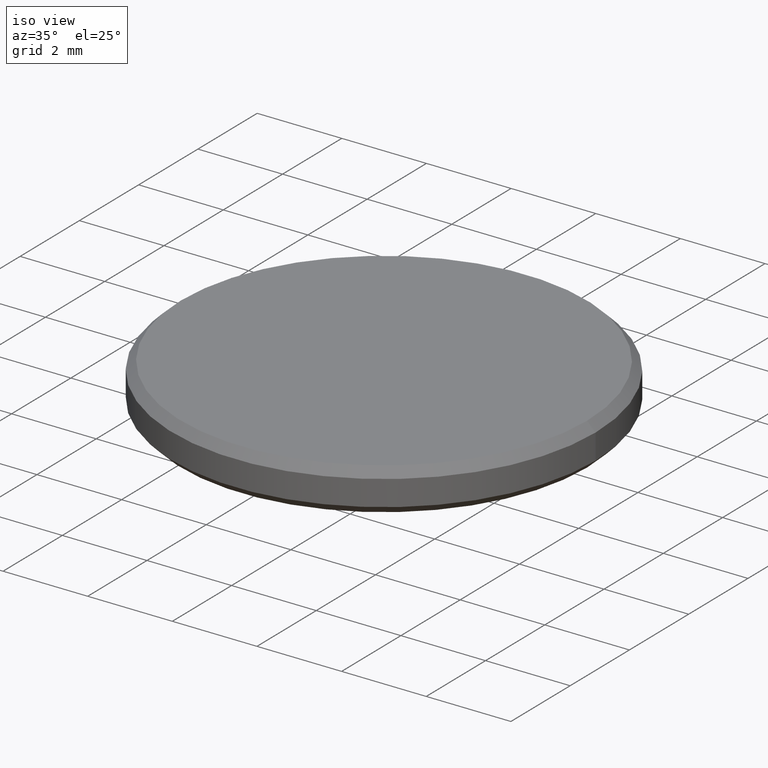
[diagram: clean part render]
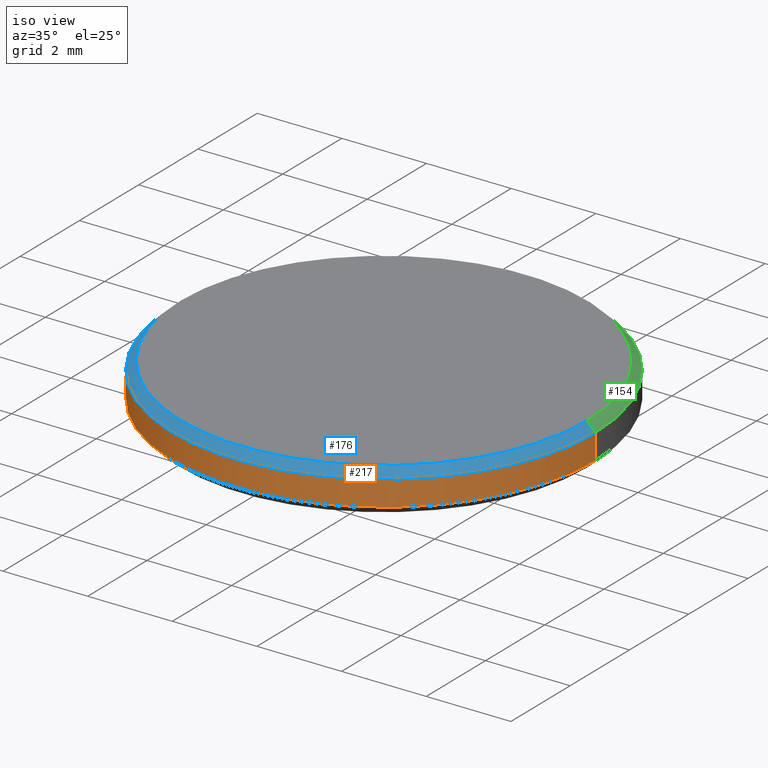
[diagram: same view with three faces highlighted in distinct colors, each labeled with its STEP entity id]
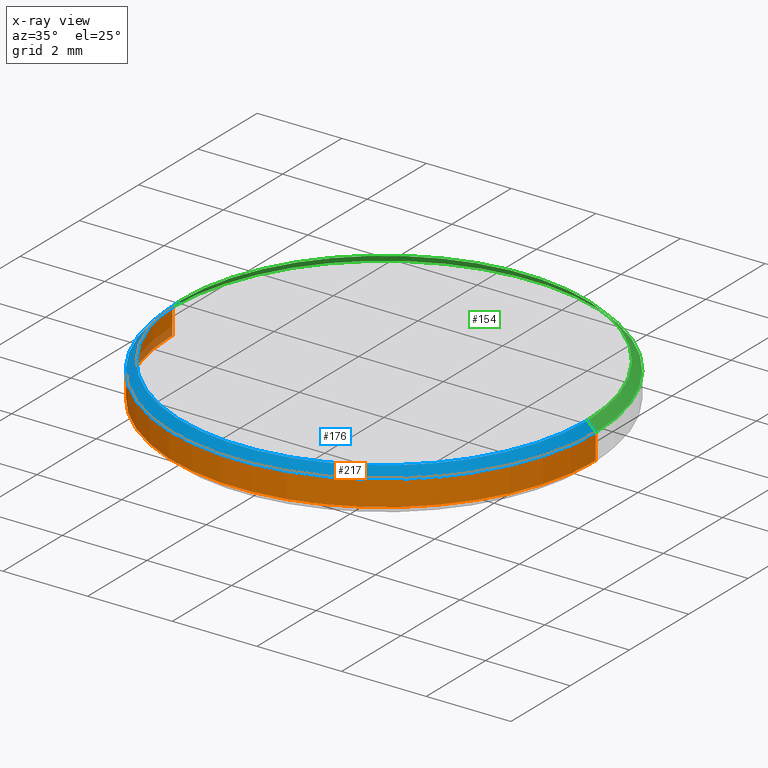
[diagram: x-ray of the same camera — body ghosted, the three highlighted faces saturated]
A machine part, iso view with three faces highlighted in distinct colors.
The next image is the same camera in x-ray (body ghosted, the three faces saturated) — at least one of them is partly hidden behind the body in this view.
Their STEP definitions:

[orange] entity #217 — the highlighted cylindrical surface (partial cylindrical patch) has radius 5 mm, axis along (-0, -0, -1).
#3 = AXIS2_PLACEMENT_3D ( 'NONE', #140, #199, #122 ) ;
#20 = EDGE_CURVE ( 'NONE', #35, #164, #21, .T. ) ;
#21 = CIRCLE ( 'NONE', #65, 5.000000000000000000 ) ;
#22 = ORIENTED_EDGE ( 'NONE', *, *, #223, .T. ) ;
#27 = EDGE_LOOP ( 'NONE', ( #108, #36, #220, #22 ) ) ;
#32 = FACE_OUTER_BOUND ( 'NONE', #27, .T. ) ;
#35 = VERTEX_POINT ( 'NONE', #45 ) ;
#36 = ORIENTED_EDGE ( 'NONE', *, *, #20, .T. ) ;
#38 = VECTOR ( 'NONE', #178, 1000.000000000000000 ) ;
#45 = CARTESIAN_POINT ( 'NONE',  ( 5.000000000000000000, 6.123233995736766282E-16, 0.8000000000000012657 ) ) ;
#62 = DIRECTION ( 'NONE',  ( 0.000000000000000000, 0.000000000000000000, -1.000000000000000000 ) ) ;
#65 = AXIS2_PLACEMENT_3D ( 'NONE', #81, #62, #99 ) ;
#69 = CARTESIAN_POINT ( 'NONE',  ( -5.000000000000000000, 0.000000000000000000, 0.8000000000000012657 ) ) ;
#71 = CARTESIAN_POINT ( 'NONE',  ( -5.000000000000000000, 0.000000000000000000, 0.1999999999999996503 ) ) ;
#73 = EDGE_CURVE ( 'NONE', #164, #201, #169, .T. ) ;
#81 = CARTESIAN_POINT ( 'NONE',  ( 0.000000000000000000, 0.000000000000000000, 0.8000000000000012657 ) ) ;
#91 = CARTESIAN_POINT ( 'NONE',  ( 0.000000000000000000, 0.000000000000000000, 1.000000000000000000 ) ) ;
#99 = DIRECTION ( 'NONE',  ( 1.000000000000000000, 0.000000000000000000, 0.000000000000000000 ) ) ;
#100 = AXIS2_PLACEMENT_3D ( 'NONE', #91, #196, #191 ) ;
#104 = CYLINDRICAL_SURFACE ( 'NONE', #100, 5.000000000000000000 ) ;
#108 = ORIENTED_EDGE ( 'NONE', *, *, #204, .F. ) ;
#122 = DIRECTION ( 'NONE',  ( 1.000000000000000000, 0.000000000000000000, 0.000000000000000000 ) ) ;
#128 = VERTEX_POINT ( 'NONE', #211 ) ;
#129 = CARTESIAN_POINT ( 'NONE',  ( -5.000000000000000000, 0.000000000000000000, 1.000000000000000000 ) ) ;
#140 = CARTESIAN_POINT ( 'NONE',  ( 0.000000000000000000, 0.000000000000000000, 0.1999999999999996503 ) ) ;
#143 = VECTOR ( 'NONE', #186, 1000.000000000000000 ) ;
#158 = LINE ( 'NONE', #162, #38 ) ;
#162 = CARTESIAN_POINT ( 'NONE',  ( 5.000000000000000000, 6.123233995736766282E-16, 1.000000000000000000 ) ) ;
#164 = VERTEX_POINT ( 'NONE', #69 ) ;
#169 = LINE ( 'NONE', #129, #143 ) ;
#178 = DIRECTION ( 'NONE',  ( -0.000000000000000000, -0.000000000000000000, -1.000000000000000000 ) ) ;
#186 = DIRECTION ( 'NONE',  ( -0.000000000000000000, -0.000000000000000000, -1.000000000000000000 ) ) ;
#191 = DIRECTION ( 'NONE',  ( -1.000000000000000000, 0.000000000000000000, 0.000000000000000000 ) ) ;
#196 = DIRECTION ( 'NONE',  ( -0.000000000000000000, -0.000000000000000000, -1.000000000000000000 ) ) ;
#199 = DIRECTION ( 'NONE',  ( -0.000000000000000000, -0.000000000000000000, 1.000000000000000000 ) ) ;
#201 = VERTEX_POINT ( 'NONE', #71 ) ;
#204 = EDGE_CURVE ( 'NONE', #35, #128, #158, .T. ) ;
#211 = CARTESIAN_POINT ( 'NONE',  ( 5.000000000000000000, 6.123233995736766282E-16, 0.1999999999999996503 ) ) ;
#217 = ADVANCED_FACE ( 'NONE', ( #32 ), #104, .T. ) ;
#220 = ORIENTED_EDGE ( 'NONE', *, *, #73, .T. ) ;
#223 = EDGE_CURVE ( 'NONE', #201, #128, #231, .T. ) ;
#231 = CIRCLE ( 'NONE', #3, 5.000000000000000000 ) ;

[blue] entity #176 — the highlighted conical surface has half-angle 45 deg.
#2 = VECTOR ( 'NONE', #190, 1000.000000000000114 ) ;
#10 = VECTOR ( 'NONE', #84, 1000.000000000000114 ) ;
#18 = DIRECTION ( 'NONE',  ( 0.000000000000000000, 0.000000000000000000, -1.000000000000000000 ) ) ;
#20 = EDGE_CURVE ( 'NONE', #35, #164, #21, .T. ) ;
#21 = CIRCLE ( 'NONE', #65, 5.000000000000000000 ) ;
#25 = LINE ( 'NONE', #134, #10 ) ;
#35 = VERTEX_POINT ( 'NONE', #45 ) ;
#41 = CARTESIAN_POINT ( 'NONE',  ( 0.000000000000000000, 0.000000000000000000, 1.000000000000000000 ) ) ;
#45 = CARTESIAN_POINT ( 'NONE',  ( 5.000000000000000000, 6.123233995736766282E-16, 0.8000000000000012657 ) ) ;
#46 = EDGE_CURVE ( 'NONE', #56, #164, #25, .T. ) ;
#50 = DIRECTION ( 'NONE',  ( 0.000000000000000000, 0.000000000000000000, 1.000000000000000000 ) ) ;
#56 = VERTEX_POINT ( 'NONE', #206 ) ;
#62 = DIRECTION ( 'NONE',  ( 0.000000000000000000, 0.000000000000000000, -1.000000000000000000 ) ) ;
#64 = CIRCLE ( 'NONE', #123, 4.800000000000002487 ) ;
#65 = AXIS2_PLACEMENT_3D ( 'NONE', #81, #62, #99 ) ;
#69 = CARTESIAN_POINT ( 'NONE',  ( -5.000000000000000000, 0.000000000000000000, 0.8000000000000012657 ) ) ;
#76 = CARTESIAN_POINT ( 'NONE',  ( 0.000000000000000000, 0.000000000000000000, 1.000000000000000000 ) ) ;
#81 = CARTESIAN_POINT ( 'NONE',  ( 0.000000000000000000, 0.000000000000000000, 0.8000000000000012657 ) ) ;
#84 = DIRECTION ( 'NONE',  ( -0.7071067811865460184, 0.000000000000000000, -0.7071067811865489050 ) ) ;
#87 = LINE ( 'NONE', #120, #2 ) ;
#89 = DIRECTION ( 'NONE',  ( -1.000000000000000000, 0.000000000000000000, 0.000000000000000000 ) ) ;
#93 = ORIENTED_EDGE ( 'NONE', *, *, #194, .F. ) ;
#99 = DIRECTION ( 'NONE',  ( 1.000000000000000000, 0.000000000000000000, 0.000000000000000000 ) ) ;
#107 = ORIENTED_EDGE ( 'NONE', *, *, #172, .F. ) ;
#120 = CARTESIAN_POINT ( 'NONE',  ( 4.800000000000002487, 5.878304635907297169E-16, 1.000000000000000000 ) ) ;
#123 = AXIS2_PLACEMENT_3D ( 'NONE', #76, #50, #160 ) ;
#125 = ORIENTED_EDGE ( 'NONE', *, *, #46, .T. ) ;
#134 = CARTESIAN_POINT ( 'NONE',  ( -4.800000000000002487, 0.000000000000000000, 1.000000000000000000 ) ) ;
#151 = CONICAL_SURFACE ( 'NONE', #192, 4.800000000000002487, 0.7853981633974461696 ) ;
#160 = DIRECTION ( 'NONE',  ( 1.000000000000000000, 0.000000000000000000, 0.000000000000000000 ) ) ;
#164 = VERTEX_POINT ( 'NONE', #69 ) ;
#172 = EDGE_CURVE ( 'NONE', #183, #35, #87, .T. ) ;
#176 = ADVANCED_FACE ( 'NONE', ( #202 ), #151, .T. ) ;
#179 = CARTESIAN_POINT ( 'NONE',  ( 4.800000000000002487, 6.000769315822031726E-16, 1.000000000000000000 ) ) ;
#182 = EDGE_LOOP ( 'NONE', ( #107, #93, #125, #215 ) ) ;
#183 = VERTEX_POINT ( 'NONE', #179 ) ;
#190 = DIRECTION ( 'NONE',  ( 0.7071067811865460184, 8.659560562354913137E-17, -0.7071067811865489050 ) ) ;
#192 = AXIS2_PLACEMENT_3D ( 'NONE', #41, #18, #89 ) ;
#194 = EDGE_CURVE ( 'NONE', #56, #183, #64, .T. ) ;
#202 = FACE_OUTER_BOUND ( 'NONE', #182, .T. ) ;
#206 = CARTESIAN_POINT ( 'NONE',  ( -4.800000000000002487, 0.000000000000000000, 1.000000000000000000 ) ) ;
#215 = ORIENTED_EDGE ( 'NONE', *, *, #20, .F. ) ;

[green] entity #154 — the highlighted conical surface has half-angle 45 deg.
#2 = VECTOR ( 'NONE', #190, 1000.000000000000114 ) ;
#10 = VECTOR ( 'NONE', #84, 1000.000000000000114 ) ;
#11 = EDGE_CURVE ( 'NONE', #164, #35, #213, .T. ) ;
#13 = DIRECTION ( 'NONE',  ( -1.000000000000000000, 0.000000000000000000, 0.000000000000000000 ) ) ;
#19 = ORIENTED_EDGE ( 'NONE', *, *, #46, .F. ) ;
#25 = LINE ( 'NONE', #134, #10 ) ;
#30 = CARTESIAN_POINT ( 'NONE',  ( 0.000000000000000000, 0.000000000000000000, 1.000000000000000000 ) ) ;
#33 = AXIS2_PLACEMENT_3D ( 'NONE', #30, #102, #13 ) ;
#34 = CIRCLE ( 'NONE', #193, 4.800000000000002487 ) ;
#35 = VERTEX_POINT ( 'NONE', #45 ) ;
#40 = ORIENTED_EDGE ( 'NONE', *, *, #11, .F. ) ;
#45 = CARTESIAN_POINT ( 'NONE',  ( 5.000000000000000000, 6.123233995736766282E-16, 0.8000000000000012657 ) ) ;
#46 = EDGE_CURVE ( 'NONE', #56, #164, #25, .T. ) ;
#56 = VERTEX_POINT ( 'NONE', #206 ) ;
#69 = CARTESIAN_POINT ( 'NONE',  ( -5.000000000000000000, 0.000000000000000000, 0.8000000000000012657 ) ) ;
#72 = ORIENTED_EDGE ( 'NONE', *, *, #131, .F. ) ;
#84 = DIRECTION ( 'NONE',  ( -0.7071067811865460184, 0.000000000000000000, -0.7071067811865489050 ) ) ;
#87 = LINE ( 'NONE', #120, #2 ) ;
#102 = DIRECTION ( 'NONE',  ( 0.000000000000000000, 0.000000000000000000, -1.000000000000000000 ) ) ;
#120 = CARTESIAN_POINT ( 'NONE',  ( 4.800000000000002487, 5.878304635907297169E-16, 1.000000000000000000 ) ) ;
#131 = EDGE_CURVE ( 'NONE', #183, #56, #34, .T. ) ;
#132 = DIRECTION ( 'NONE',  ( 1.000000000000000000, 0.000000000000000000, 0.000000000000000000 ) ) ;
#134 = CARTESIAN_POINT ( 'NONE',  ( -4.800000000000002487, 0.000000000000000000, 1.000000000000000000 ) ) ;
#135 = CONICAL_SURFACE ( 'NONE', #33, 4.800000000000002487, 0.7853981633974461696 ) ;
#154 = ADVANCED_FACE ( 'NONE', ( #188 ), #135, .T. ) ;
#161 = ORIENTED_EDGE ( 'NONE', *, *, #172, .T. ) ;
#164 = VERTEX_POINT ( 'NONE', #69 ) ;
#172 = EDGE_CURVE ( 'NONE', #183, #35, #87, .T. ) ;
#175 = DIRECTION ( 'NONE',  ( 1.000000000000000000, 0.000000000000000000, 0.000000000000000000 ) ) ;
#179 = CARTESIAN_POINT ( 'NONE',  ( 4.800000000000002487, 6.000769315822031726E-16, 1.000000000000000000 ) ) ;
#183 = VERTEX_POINT ( 'NONE', #179 ) ;
#187 = DIRECTION ( 'NONE',  ( 0.000000000000000000, 0.000000000000000000, 1.000000000000000000 ) ) ;
#188 = FACE_OUTER_BOUND ( 'NONE', #197, .T. ) ;
#190 = DIRECTION ( 'NONE',  ( 0.7071067811865460184, 8.659560562354913137E-17, -0.7071067811865489050 ) ) ;
#193 = AXIS2_PLACEMENT_3D ( 'NONE', #209, #187, #175 ) ;
#197 = EDGE_LOOP ( 'NONE', ( #72, #161, #40, #19 ) ) ;
#203 = DIRECTION ( 'NONE',  ( 0.000000000000000000, 0.000000000000000000, -1.000000000000000000 ) ) ;
#206 = CARTESIAN_POINT ( 'NONE',  ( -4.800000000000002487, 0.000000000000000000, 1.000000000000000000 ) ) ;
#209 = CARTESIAN_POINT ( 'NONE',  ( 0.000000000000000000, 0.000000000000000000, 1.000000000000000000 ) ) ;
#213 = CIRCLE ( 'NONE', #221, 5.000000000000000000 ) ;
#221 = AXIS2_PLACEMENT_3D ( 'NONE', #224, #203, #132 ) ;
#224 = CARTESIAN_POINT ( 'NONE',  ( 0.000000000000000000, 0.000000000000000000, 0.8000000000000012657 ) ) ;